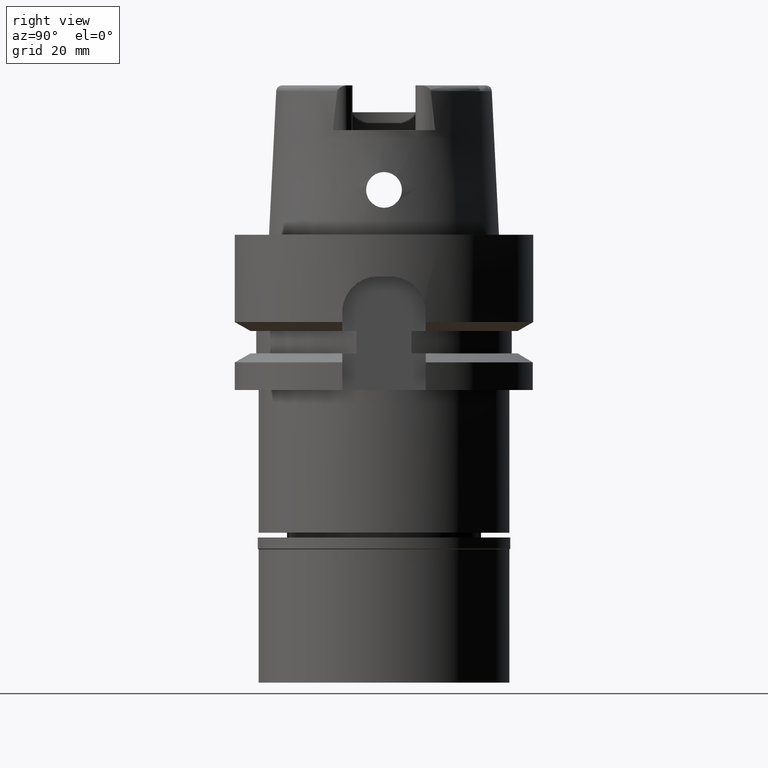
[diagram: clean part render]
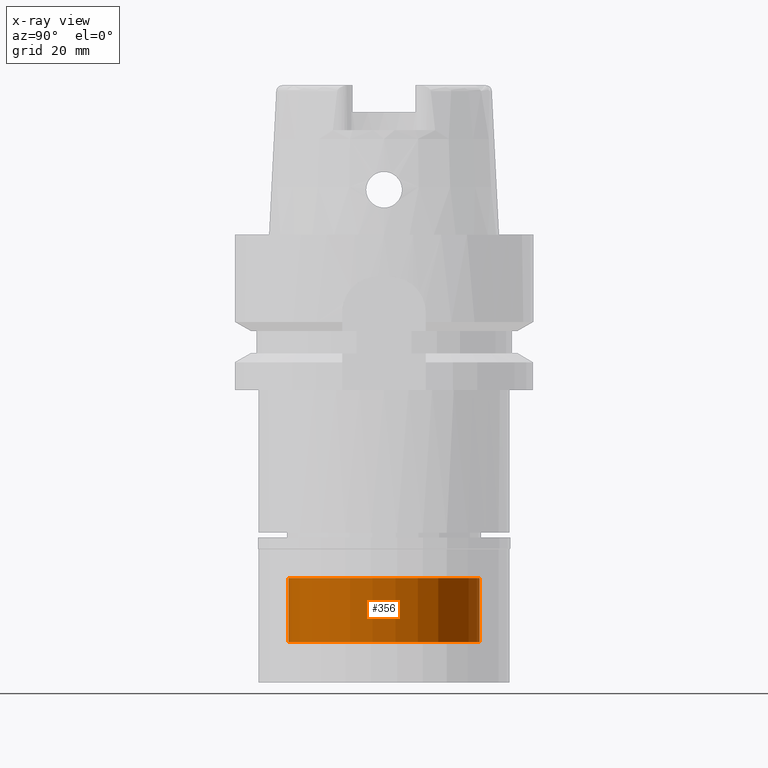
[diagram: x-ray — body ghosted, one internal face saturated and labeled with its STEP entity id]
A machine part, right view, then the same camera in x-ray: the body is ghosted and one INTERNAL B-rep face — a face not visible from any outside direction — is saturated and labeled: STEP entity #356.
In plain terms, the highlighted cylindrical surface (partial cylindrical patch) has radius 16 mm, axis along (0, 0, -1).
Its self-contained STEP definition (entity closure, byte-faithful):
#44 = DIRECTION ( 'NONE',  ( 0.0000000000000000000, 1.000000000000000000, 0.0000000000000000000 ) ) ;
#82 = EDGE_CURVE ( 'NONE', #2240, #2477, #3569, .T. ) ;
#306 = AXIS2_PLACEMENT_3D ( 'NONE', #1531, #3719, #4971 ) ;
#356 = ADVANCED_FACE ( 'NONE', ( #2334 ), #4890, .F. ) ;
#498 = VERTEX_POINT ( 'NONE', #841 ) ;
#589 = ORIENTED_EDGE ( 'NONE', *, *, #2690, .T. ) ;
#595 = CARTESIAN_POINT ( 'NONE',  ( 0.0000000000000000000, 16.00000000000000000, -17.50000000000000000 ) ) ;
#768 = CARTESIAN_POINT ( 'NONE',  ( 0.0000000000000000000, 16.00000000000000000, -6.799999999999999822 ) ) ;
#841 = CARTESIAN_POINT ( 'NONE',  ( 0.0000000000000000000, -16.00000000000000000, -17.50000000000000000 ) ) ;
#1029 = EDGE_LOOP ( 'NONE', ( #589, #4297, #2561, #2249 ) ) ;
#1103 = CIRCLE ( 'NONE', #306, 16.00000000000000000 ) ;
#1445 = DIRECTION ( 'NONE',  ( 0.0000000000000000000, -1.000000000000000000, 0.0000000000000000000 ) ) ;
#1531 = CARTESIAN_POINT ( 'NONE',  ( 0.0000000000000000000, 0.0000000000000000000, -6.799999999999999822 ) ) ;
#1926 = CARTESIAN_POINT ( 'NONE',  ( 0.0000000000000000000, -16.00000000000000000, -17.50000000000000000 ) ) ;
#2240 = VERTEX_POINT ( 'NONE', #595 ) ;
#2249 = ORIENTED_EDGE ( 'NONE', *, *, #82, .F. ) ;
#2332 = AXIS2_PLACEMENT_3D ( 'NONE', #2936, #5130, #44 ) ;
#2334 = FACE_OUTER_BOUND ( 'NONE', #1029, .T. ) ;
#2477 = VERTEX_POINT ( 'NONE', #768 ) ;
#2561 = ORIENTED_EDGE ( 'NONE', *, *, #2796, .T. ) ;
#2690 = EDGE_CURVE ( 'NONE', #2240, #498, #4380, .T. ) ;
#2764 = VECTOR ( 'NONE', #5361, 1000.000000000000000 ) ;
#2796 = EDGE_CURVE ( 'NONE', #5329, #2477, #1103, .T. ) ;
#2936 = CARTESIAN_POINT ( 'NONE',  ( 0.0000000000000000000, 0.0000000000000000000, -17.50000000000000000 ) ) ;
#3422 = CARTESIAN_POINT ( 'NONE',  ( 0.0000000000000000000, -16.00000000000000000, -6.799999999999999822 ) ) ;
#3500 = EDGE_CURVE ( 'NONE', #498, #5329, #4848, .T. ) ;
#3569 = LINE ( 'NONE', #3965, #4370 ) ;
#3719 = DIRECTION ( 'NONE',  ( 0.0000000000000000000, 0.0000000000000000000, 1.000000000000000000 ) ) ;
#3965 = CARTESIAN_POINT ( 'NONE',  ( 0.0000000000000000000, 16.00000000000000000, -17.50000000000000000 ) ) ;
#4065 = DIRECTION ( 'NONE',  ( 0.0000000000000000000, 0.0000000000000000000, -1.000000000000000000 ) ) ;
#4291 = AXIS2_PLACEMENT_3D ( 'NONE', #5241, #4065, #1445 ) ;
#4297 = ORIENTED_EDGE ( 'NONE', *, *, #3500, .T. ) ;
#4348 = DIRECTION ( 'NONE',  ( 0.0000000000000000000, 0.0000000000000000000, 1.000000000000000000 ) ) ;
#4370 = VECTOR ( 'NONE', #4348, 1000.000000000000000 ) ;
#4380 = CIRCLE ( 'NONE', #2332, 16.00000000000000000 ) ;
#4848 = LINE ( 'NONE', #1926, #2764 ) ;
#4890 = CYLINDRICAL_SURFACE ( 'NONE', #4291, 16.00000000000000000 ) ;
#4971 = DIRECTION ( 'NONE',  ( 0.0000000000000000000, -1.000000000000000000, 0.0000000000000000000 ) ) ;
#5130 = DIRECTION ( 'NONE',  ( 0.0000000000000000000, 0.0000000000000000000, -1.000000000000000000 ) ) ;
#5241 = CARTESIAN_POINT ( 'NONE',  ( 0.0000000000000000000, 0.0000000000000000000, 0.0000000000000000000 ) ) ;
#5329 = VERTEX_POINT ( 'NONE', #3422 ) ;
#5361 = DIRECTION ( 'NONE',  ( 0.0000000000000000000, 0.0000000000000000000, 1.000000000000000000 ) ) ;